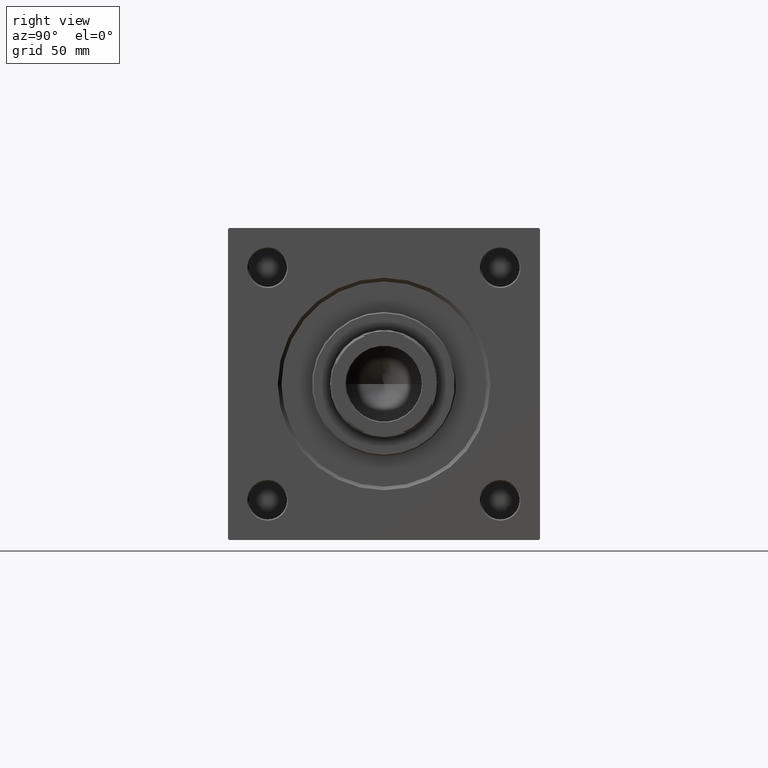
[diagram: clean part render]
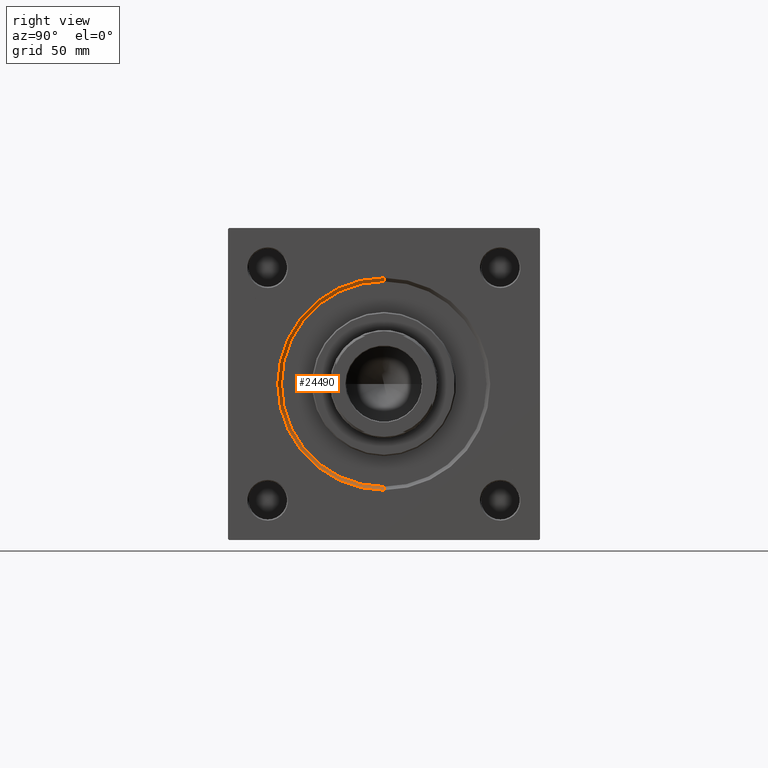
[diagram: same view with one face highlighted and labeled with its STEP entity id]
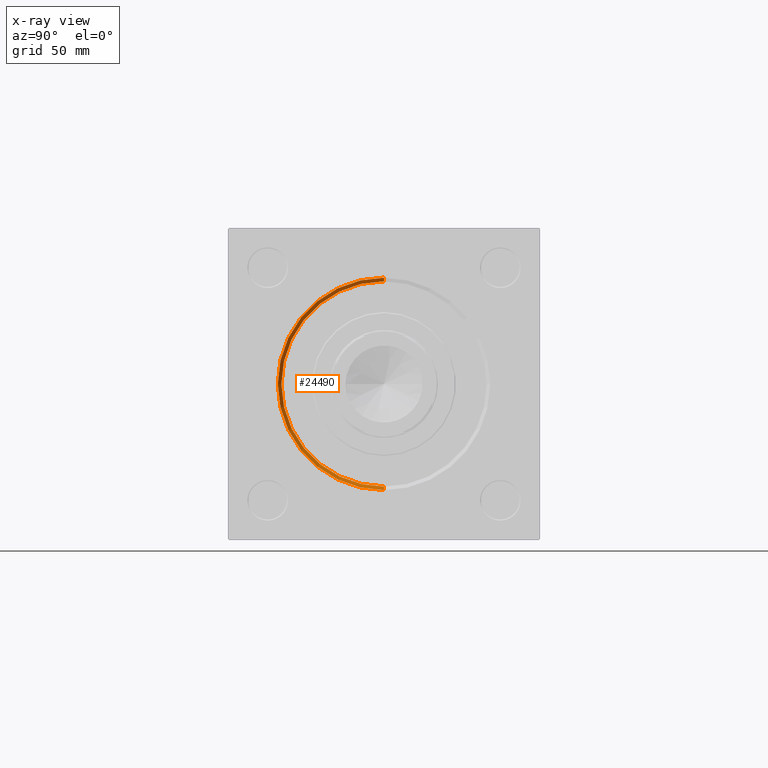
[diagram: x-ray of the same camera — body ghosted, the highlighted face saturated]
A machine part, right view. The second image highlights one B-rep face of the part: STEP entity #24490.
The next image is the same camera in x-ray: the body ghosted, the highlighted face saturated — about 0% of this face is hidden behind the body in this view.
In plain terms, the highlighted conical surface has half-angle 45 deg.
Its self-contained STEP definition (entity closure, byte-faithful):
#3897 = EDGE_CURVE ( 'NONE', #26007, #31752, #18954, .T. ) ;
#4217 = AXIS2_PLACEMENT_3D ( 'NONE', #31548, #46914, #11865 ) ;
#4977 = CARTESIAN_POINT ( 'NONE',  ( 186.5000000000000284, 0.000000000000000000, 0.000000000000000000 ) ) ;
#5031 = LINE ( 'NONE', #20164, #39636 ) ;
#5579 = DIRECTION ( 'NONE',  ( -1.000000000000000000, 0.000000000000000000, -0.000000000000000000 ) ) ;
#6870 = ORIENTED_EDGE ( 'NONE', *, *, #12244, .T. ) ;
#9386 = DIRECTION ( 'NONE',  ( 0.7071067811865459074, 8.659560562354953812E-17, 0.7071067811865491270 ) ) ;
#9615 = CIRCLE ( 'NONE', #43097, 44.24999999999998579 ) ;
#11858 = VERTEX_POINT ( 'NONE', #29643 ) ;
#11865 = DIRECTION ( 'NONE',  ( 0.000000000000000000, 0.000000000000000000, 1.000000000000000000 ) ) ;
#12244 = EDGE_CURVE ( 'NONE', #26007, #19838, #44446, .T. ) ;
#12526 = ORIENTED_EDGE ( 'NONE', *, *, #46561, .F. ) ;
#12575 = ORIENTED_EDGE ( 'NONE', *, *, #14837, .F. ) ;
#13242 = CARTESIAN_POINT ( 'NONE',  ( 186.5000000000000284, 5.235365066354935472E-15, 42.75000000000000000 ) ) ;
#14837 = EDGE_CURVE ( 'NONE', #31752, #11858, #5031, .T. ) ;
#16782 = FACE_OUTER_BOUND ( 'NONE', #18945, .T. ) ;
#18945 = EDGE_LOOP ( 'NONE', ( #44624, #6870, #12526, #12575 ) ) ;
#18954 = CIRCLE ( 'NONE', #4217, 42.75000000000000000 ) ;
#19838 = VERTEX_POINT ( 'NONE', #49752 ) ;
#20164 = CARTESIAN_POINT ( 'NONE',  ( 186.5000000000000284, 0.000000000000000000, -42.75000000000000000 ) ) ;
#24191 = DIRECTION ( 'NONE',  ( 0.000000000000000000, 0.000000000000000000, -1.000000000000000000 ) ) ;
#24490 = ADVANCED_FACE ( 'NONE', ( #16782 ), #29305, .F. ) ;
#24753 = DIRECTION ( 'NONE',  ( 0.7071067811865459074, 0.000000000000000000, -0.7071067811865491270 ) ) ;
#26007 = VERTEX_POINT ( 'NONE', #29199 ) ;
#29145 = DIRECTION ( 'NONE',  ( 0.000000000000000000, 0.000000000000000000, 1.000000000000000000 ) ) ;
#29199 = CARTESIAN_POINT ( 'NONE',  ( 186.5000000000000284, 5.235365066354935472E-15, 42.75000000000000000 ) ) ;
#29305 = CONICAL_SURFACE ( 'NONE', #48124, 42.75000000000000000, 0.7853981633974506105 ) ;
#29643 = CARTESIAN_POINT ( 'NONE',  ( 188.0000000000000000, 0.000000000000000000, -44.24999999999998579 ) ) ;
#31548 = CARTESIAN_POINT ( 'NONE',  ( 186.5000000000000284, 0.000000000000000000, 0.000000000000000000 ) ) ;
#31752 = VERTEX_POINT ( 'NONE', #44859 ) ;
#36204 = DIRECTION ( 'NONE',  ( 1.000000000000000000, 0.000000000000000000, 0.000000000000000000 ) ) ;
#39636 = VECTOR ( 'NONE', #24753, 1000.000000000000114 ) ;
#43097 = AXIS2_PLACEMENT_3D ( 'NONE', #48599, #5579, #29145 ) ;
#44446 = LINE ( 'NONE', #13242, #46174 ) ;
#44624 = ORIENTED_EDGE ( 'NONE', *, *, #3897, .F. ) ;
#44859 = CARTESIAN_POINT ( 'NONE',  ( 186.5000000000000284, 0.000000000000000000, -42.75000000000000000 ) ) ;
#46174 = VECTOR ( 'NONE', #9386, 1000.000000000000114 ) ;
#46561 = EDGE_CURVE ( 'NONE', #11858, #19838, #9615, .T. ) ;
#46914 = DIRECTION ( 'NONE',  ( 1.000000000000000000, 0.000000000000000000, 0.000000000000000000 ) ) ;
#48124 = AXIS2_PLACEMENT_3D ( 'NONE', #4977, #36204, #24191 ) ;
#48599 = CARTESIAN_POINT ( 'NONE',  ( 188.0000000000000000, 0.000000000000000000, 0.000000000000000000 ) ) ;
#49752 = CARTESIAN_POINT ( 'NONE',  ( 188.0000000000000000, 5.419062086227035828E-15, 44.24999999999998579 ) ) ;